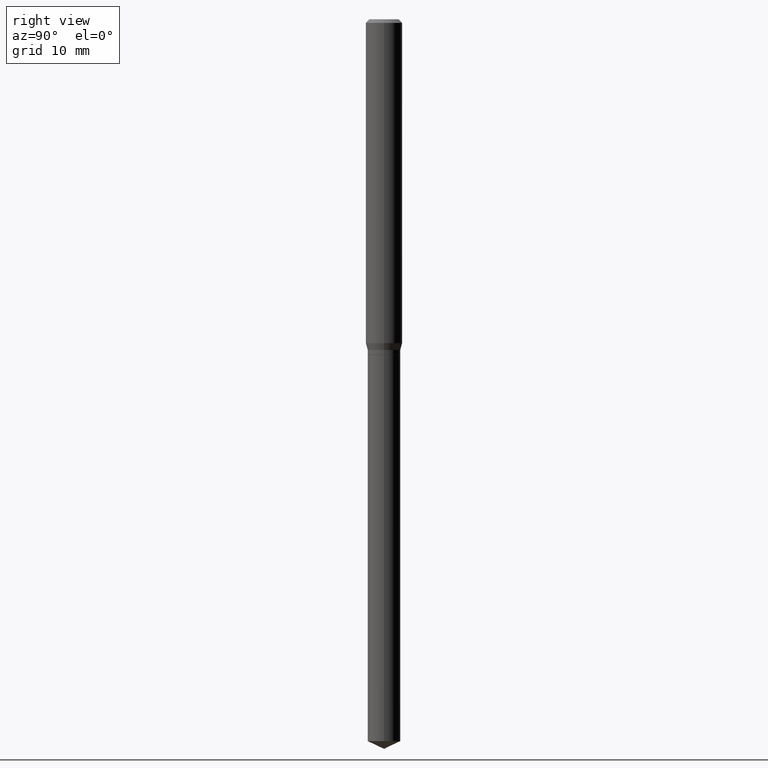
[diagram: clean part render]
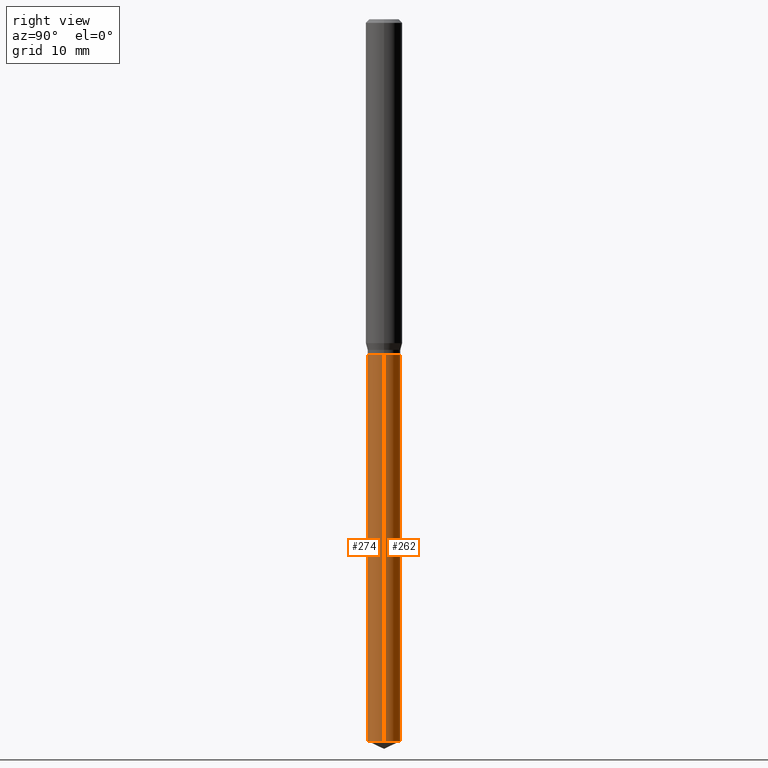
[diagram: same view with one multi-face feature highlighted, each face labeled with its STEP entity id]
A machine part, right view. The highlighted faces form ONE feature: a constant-radius fillet chain: 2 tangent blend faces with common blend radius 1.35 mm. The faces share edges in the B-rep.
Their STEP definitions:
[1] entity #274 (Cylinder):
#8 = AXIS2_PLACEMENT_3D ( 'NONE', #292, #440, #435 ) ;
#22 = EDGE_LOOP ( 'NONE', ( #252, #150, #488, #299 ) ) ;
#24 = VECTOR ( 'NONE', #331, 39.37007874015748143 ) ;
#47 = CIRCLE ( 'NONE', #453, 0.05315000000000000280 ) ;
#52 = DIRECTION ( 'NONE',  ( 1.000000000000000000, -6.982962677686269077E-15, 0.000000000000000000 ) ) ;
#75 = CARTESIAN_POINT ( 'NONE',  ( -0.05315000000000000280, -5.599091783645254957E-15, -1.086399999999999588 ) ) ;
#85 = CARTESIAN_POINT ( 'NONE',  ( 0.05315000000000000974, -8.531489635203330655E-15, -2.337215747969062285 ) ) ;
#96 = CARTESIAN_POINT ( 'NONE',  ( 0.05315000000000000280, -4.164289792838217118E-15, -1.086399999999999588 ) ) ;
#101 = VERTEX_POINT ( 'NONE', #75 ) ;
#124 = AXIS2_PLACEMENT_3D ( 'NONE', #201, #392, #52 ) ;
#128 = FACE_OUTER_BOUND ( 'NONE', #22, .T. ) ;
#134 = CARTESIAN_POINT ( 'NONE',  ( 2.656757311039531549E-29, -3.793145326519192049E-15, -1.086399999999999588 ) ) ;
#141 = LINE ( 'NONE', #319, #24 ) ;
#146 = DIRECTION ( 'NONE',  ( -2.445468806185136877E-29, 3.491481338843145188E-15, 1.000000000000000000 ) ) ;
#150 = ORIENTED_EDGE ( 'NONE', *, *, #397, .T. ) ;
#174 = VERTEX_POINT ( 'NONE', #85 ) ;
#200 = CYLINDRICAL_SURFACE ( 'NONE', #124, 0.05315000000000000280 ) ;
#201 = CARTESIAN_POINT ( 'NONE',  ( 2.656757311039531549E-29, -3.793145326519192838E-15, -1.086399999999999810 ) ) ;
#210 = DIRECTION ( 'NONE',  ( 1.000000000000000000, -6.982962677686269077E-15, 0.000000000000000000 ) ) ;
#244 = DIRECTION ( 'NONE',  ( -2.445468806185136597E-29, 3.491481338843145583E-15, 1.000000000000000000 ) ) ;
#252 = ORIENTED_EDGE ( 'NONE', *, *, #366, .F. ) ;
#272 = VECTOR ( 'NONE', #146, 39.37007874015748143 ) ;
#274 = ADVANCED_FACE ( 'NONE', ( #128 ), #200, .T. ) ;
#281 = CARTESIAN_POINT ( 'NONE',  ( 0.05315000000000000280, -4.164289792838217907E-15, -1.086399999999999810 ) ) ;
#292 = CARTESIAN_POINT ( 'NONE',  ( 5.715588204983003350E-29, -8.160345168884305586E-15, -2.337215747969062285 ) ) ;
#299 = ORIENTED_EDGE ( 'NONE', *, *, #447, .F. ) ;
#319 = CARTESIAN_POINT ( 'NONE',  ( -0.05315000000000000280, -3.415491862462699372E-15, -1.086399999999999810 ) ) ;
#324 = EDGE_CURVE ( 'NONE', #174, #330, #480, .T. ) ;
#330 = VERTEX_POINT ( 'NONE', #96 ) ;
#331 = DIRECTION ( 'NONE',  ( -2.445468806185136877E-29, 3.491481338843145188E-15, 1.000000000000000000 ) ) ;
#366 = EDGE_CURVE ( 'NONE', #403, #101, #141, .T. ) ;
#392 = DIRECTION ( 'NONE',  ( -2.445468806185136597E-29, 3.491481338843145583E-15, 1.000000000000000000 ) ) ;
#397 = EDGE_CURVE ( 'NONE', #403, #174, #433, .T. ) ;
#400 = CARTESIAN_POINT ( 'NONE',  ( -0.05315000000000000974, -7.782691704827812120E-15, -2.337215747969062285 ) ) ;
#403 = VERTEX_POINT ( 'NONE', #400 ) ;
#433 = CIRCLE ( 'NONE', #8, 0.05315000000000000280 ) ;
#435 = DIRECTION ( 'NONE',  ( 1.000000000000000000, -6.982962677686260400E-15, 0.000000000000000000 ) ) ;
#440 = DIRECTION ( 'NONE',  ( -2.445468806185136597E-29, 3.491481338843145583E-15, 1.000000000000000000 ) ) ;
#447 = EDGE_CURVE ( 'NONE', #101, #330, #47, .T. ) ;
#453 = AXIS2_PLACEMENT_3D ( 'NONE', #134, #244, #210 ) ;
#480 = LINE ( 'NONE', #281, #272 ) ;
#488 = ORIENTED_EDGE ( 'NONE', *, *, #324, .T. ) ;
[2] entity #262 (Cylinder):
#20 = EDGE_LOOP ( 'NONE', ( #296, #406, #270, #483 ) ) ;
#24 = VECTOR ( 'NONE', #331, 39.37007874015748143 ) ;
#75 = CARTESIAN_POINT ( 'NONE',  ( -0.05315000000000000280, -5.599091783645254957E-15, -1.086399999999999588 ) ) ;
#85 = CARTESIAN_POINT ( 'NONE',  ( 0.05315000000000000974, -8.531489635203330655E-15, -2.337215747969062285 ) ) ;
#96 = CARTESIAN_POINT ( 'NONE',  ( 0.05315000000000000280, -4.164289792838217118E-15, -1.086399999999999588 ) ) ;
#101 = VERTEX_POINT ( 'NONE', #75 ) ;
#122 = DIRECTION ( 'NONE',  ( 1.000000000000000000, -6.982962677686269077E-15, 0.000000000000000000 ) ) ;
#140 = CIRCLE ( 'NONE', #203, 0.05315000000000000280 ) ;
#141 = LINE ( 'NONE', #319, #24 ) ;
#146 = DIRECTION ( 'NONE',  ( -2.445468806185136877E-29, 3.491481338843145188E-15, 1.000000000000000000 ) ) ;
#174 = VERTEX_POINT ( 'NONE', #85 ) ;
#203 = AXIS2_PLACEMENT_3D ( 'NONE', #259, #355, #471 ) ;
#242 = FACE_OUTER_BOUND ( 'NONE', #20, .T. ) ;
#243 = CYLINDRICAL_SURFACE ( 'NONE', #388, 0.05315000000000000280 ) ;
#259 = CARTESIAN_POINT ( 'NONE',  ( 2.656757311039531549E-29, -3.793145326519192049E-15, -1.086399999999999588 ) ) ;
#262 = ADVANCED_FACE ( 'NONE', ( #242 ), #243, .T. ) ;
#270 = ORIENTED_EDGE ( 'NONE', *, *, #439, .F. ) ;
#272 = VECTOR ( 'NONE', #146, 39.37007874015748143 ) ;
#281 = CARTESIAN_POINT ( 'NONE',  ( 0.05315000000000000280, -4.164289792838217907E-15, -1.086399999999999810 ) ) ;
#290 = DIRECTION ( 'NONE',  ( -2.445468806185136597E-29, 3.491481338843145583E-15, 1.000000000000000000 ) ) ;
#296 = ORIENTED_EDGE ( 'NONE', *, *, #423, .T. ) ;
#313 = CARTESIAN_POINT ( 'NONE',  ( 2.656757311039531549E-29, -3.793145326519192838E-15, -1.086399999999999810 ) ) ;
#317 = CIRCLE ( 'NONE', #349, 0.05315000000000000280 ) ;
#319 = CARTESIAN_POINT ( 'NONE',  ( -0.05315000000000000280, -3.415491862462699372E-15, -1.086399999999999810 ) ) ;
#324 = EDGE_CURVE ( 'NONE', #174, #330, #480, .T. ) ;
#330 = VERTEX_POINT ( 'NONE', #96 ) ;
#331 = DIRECTION ( 'NONE',  ( -2.445468806185136877E-29, 3.491481338843145188E-15, 1.000000000000000000 ) ) ;
#349 = AXIS2_PLACEMENT_3D ( 'NONE', #478, #290, #437 ) ;
#355 = DIRECTION ( 'NONE',  ( -2.445468806185136597E-29, 3.491481338843145583E-15, 1.000000000000000000 ) ) ;
#366 = EDGE_CURVE ( 'NONE', #403, #101, #141, .T. ) ;
#388 = AXIS2_PLACEMENT_3D ( 'NONE', #313, #391, #122 ) ;
#391 = DIRECTION ( 'NONE',  ( -2.445468806185136597E-29, 3.491481338843145583E-15, 1.000000000000000000 ) ) ;
#400 = CARTESIAN_POINT ( 'NONE',  ( -0.05315000000000000974, -7.782691704827812120E-15, -2.337215747969062285 ) ) ;
#403 = VERTEX_POINT ( 'NONE', #400 ) ;
#406 = ORIENTED_EDGE ( 'NONE', *, *, #366, .T. ) ;
#423 = EDGE_CURVE ( 'NONE', #174, #403, #317, .T. ) ;
#437 = DIRECTION ( 'NONE',  ( 1.000000000000000000, -6.982962677686260400E-15, 0.000000000000000000 ) ) ;
#439 = EDGE_CURVE ( 'NONE', #330, #101, #140, .T. ) ;
#471 = DIRECTION ( 'NONE',  ( 1.000000000000000000, -6.982962677686269077E-15, 0.000000000000000000 ) ) ;
#478 = CARTESIAN_POINT ( 'NONE',  ( 5.715588204983003350E-29, -8.160345168884305586E-15, -2.337215747969062285 ) ) ;
#480 = LINE ( 'NONE', #281, #272 ) ;
#483 = ORIENTED_EDGE ( 'NONE', *, *, #324, .F. ) ;